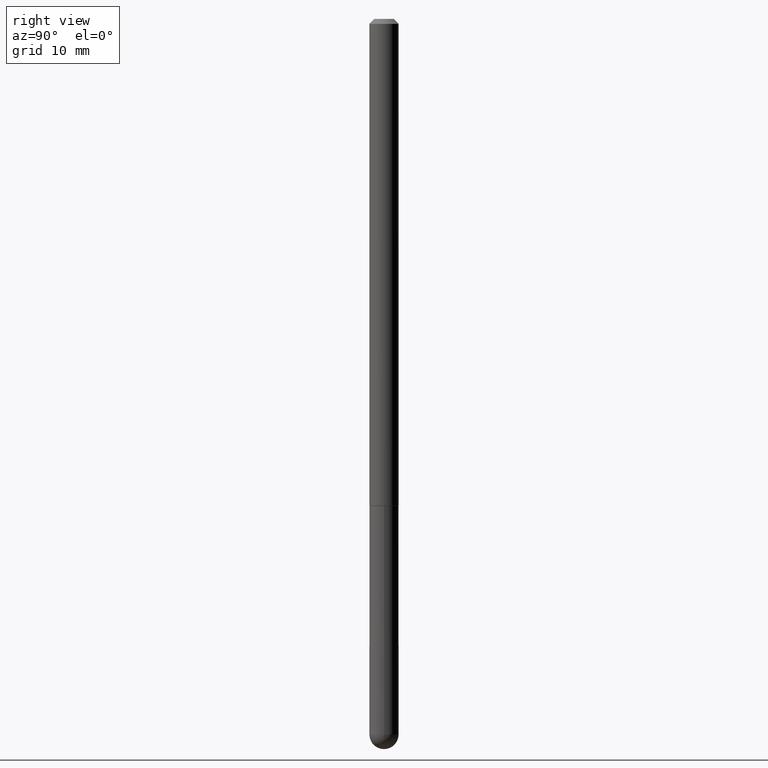
[diagram: clean part render]
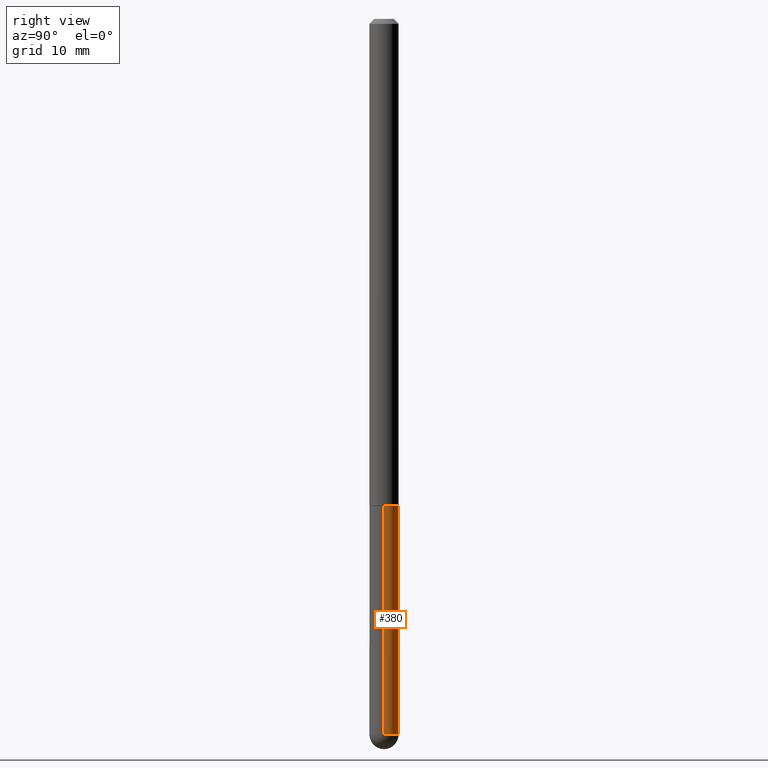
[diagram: same view with one face highlighted and labeled with its STEP entity id]
A machine part, right view. The second image highlights one B-rep face of the part: STEP entity #380.
In plain terms, the highlighted cylindrical surface (edge-blend (fillet) strip) has radius 1.4999 mm, axis along (-0, 0, 1).
Its self-contained STEP definition (entity closure, byte-faithful):
#4 = EDGE_CURVE ( 'NONE', #153, #277, #393, .T. ) ;
#5 = CARTESIAN_POINT ( 'NONE',  ( 4.123439461174440441E-16, 0.05904999999998979815, -2.893749999999999822 ) ) ;
#8 = DIRECTION ( 'NONE',  ( 1.000000000000000000, -6.982962677686266711E-15, 4.876176775795935793E-29 ) ) ;
#12 = CIRCLE ( 'NONE', #21, 0.05905000000000001914 ) ;
#21 = AXIS2_PLACEMENT_3D ( 'NONE', #105, #328, #75 ) ;
#43 = CARTESIAN_POINT ( 'NONE',  ( -0.05905000000000001914, -8.068652084428701697E-15, -1.968499999999999694 ) ) ;
#49 = DIRECTION ( 'NONE',  ( -2.445468806185136597E-29, 3.491481338843145583E-15, 1.000000000000000000 ) ) ;
#51 = FACE_OUTER_BOUND ( 'NONE', #265, .T. ) ;
#67 = CARTESIAN_POINT ( 'NONE',  ( 0.05905000000000001914, -8.900571516012416899E-15, -2.893749999999999822 ) ) ;
#71 = ORIENTED_EDGE ( 'NONE', *, *, #290, .T. ) ;
#75 = DIRECTION ( 'NONE',  ( 1.000000000000000000, -6.982962677686270655E-15, 0.000000000000000000 ) ) ;
#79 = DIRECTION ( 'NONE',  ( -2.445468806185136877E-29, 3.491481338843145188E-15, 1.000000000000000000 ) ) ;
#104 = CARTESIAN_POINT ( 'NONE',  ( 7.076575357898237682E-29, -1.010347412427735067E-14, -2.893749999999999822 ) ) ;
#105 = CARTESIAN_POINT ( 'NONE',  ( 4.813905344975440714E-29, -6.872981015512730918E-15, -1.968499999999999694 ) ) ;
#107 = ORIENTED_EDGE ( 'NONE', *, *, #243, .T. ) ;
#139 = DIRECTION ( 'NONE',  ( 1.000000000000000000, -6.982962677686270655E-15, 0.000000000000000000 ) ) ;
#141 = CIRCLE ( 'NONE', #188, 0.05905000000000001914 ) ;
#153 = VERTEX_POINT ( 'NONE', #335 ) ;
#188 = AXIS2_PLACEMENT_3D ( 'NONE', #104, #319, #139 ) ;
#193 = AXIS2_PLACEMENT_3D ( 'NONE', #334, #49, #8 ) ;
#211 = CIRCLE ( 'NONE', #382, 0.05905000000000001914 ) ;
#222 = VERTEX_POINT ( 'NONE', #5 ) ;
#243 = EDGE_CURVE ( 'NONE', #269, #222, #141, .T. ) ;
#244 = ORIENTED_EDGE ( 'NONE', *, *, #372, .F. ) ;
#257 = CARTESIAN_POINT ( 'NONE',  ( 0.05905000000000001914, -7.285324961630105839E-15, -1.968499999999999694 ) ) ;
#258 = DIRECTION ( 'NONE',  ( -2.445468806185136597E-29, 3.491481338843145583E-15, 1.000000000000000000 ) ) ;
#265 = EDGE_LOOP ( 'NONE', ( #71, #387, #267, #244, #107 ) ) ;
#267 = ORIENTED_EDGE ( 'NONE', *, *, #268, .F. ) ;
#268 = EDGE_CURVE ( 'NONE', #331, #277, #12, .T. ) ;
#269 = VERTEX_POINT ( 'NONE', #67 ) ;
#272 = CARTESIAN_POINT ( 'NONE',  ( 0.05905000000000001914, -4.123439461173741806E-16, 2.879382386107500921E-30 ) ) ;
#277 = VERTEX_POINT ( 'NONE', #43 ) ;
#284 = DIRECTION ( 'NONE',  ( -2.445468806185136877E-29, 3.491481338843145188E-15, 1.000000000000000000 ) ) ;
#290 = EDGE_CURVE ( 'NONE', #222, #153, #211, .T. ) ;
#312 = CARTESIAN_POINT ( 'NONE',  ( -0.05905000000000001914, 4.195754854663392958E-16, -2.904631170795522943E-30 ) ) ;
#319 = DIRECTION ( 'NONE',  ( -2.445468806185136597E-29, 3.491481338843145583E-15, 1.000000000000000000 ) ) ;
#328 = DIRECTION ( 'NONE',  ( -2.445468806185136597E-29, 3.491481338843145583E-15, 1.000000000000000000 ) ) ;
#331 = VERTEX_POINT ( 'NONE', #257 ) ;
#332 = CYLINDRICAL_SURFACE ( 'NONE', #193, 0.05905000000000001914 ) ;
#334 = CARTESIAN_POINT ( 'NONE',  ( 0.000000000000000000, 0.000000000000000000, 0.000000000000000000 ) ) ;
#335 = CARTESIAN_POINT ( 'NONE',  ( -0.05905000000000001914, -8.068652084428701697E-15, -2.893749999999999822 ) ) ;
#350 = DIRECTION ( 'NONE',  ( 1.000000000000000000, -6.982962677686270655E-15, 0.000000000000000000 ) ) ;
#361 = LINE ( 'NONE', #272, #370 ) ;
#370 = VECTOR ( 'NONE', #79, 39.37007874015748143 ) ;
#372 = EDGE_CURVE ( 'NONE', #269, #331, #361, .T. ) ;
#380 = ADVANCED_FACE ( 'NONE', ( #51 ), #332, .T. ) ;
#381 = CARTESIAN_POINT ( 'NONE',  ( 7.076575357898237682E-29, -1.010347412427735067E-14, -2.893749999999999822 ) ) ;
#382 = AXIS2_PLACEMENT_3D ( 'NONE', #381, #258, #350 ) ;
#387 = ORIENTED_EDGE ( 'NONE', *, *, #4, .T. ) ;
#393 = LINE ( 'NONE', #312, #402 ) ;
#402 = VECTOR ( 'NONE', #284, 39.37007874015748143 ) ;